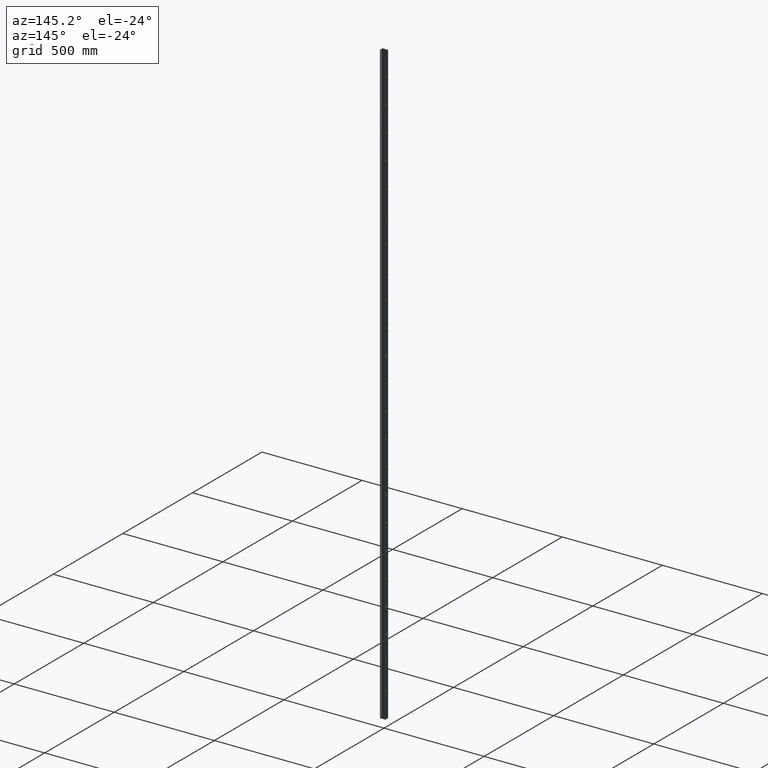
[diagram: clean part render]
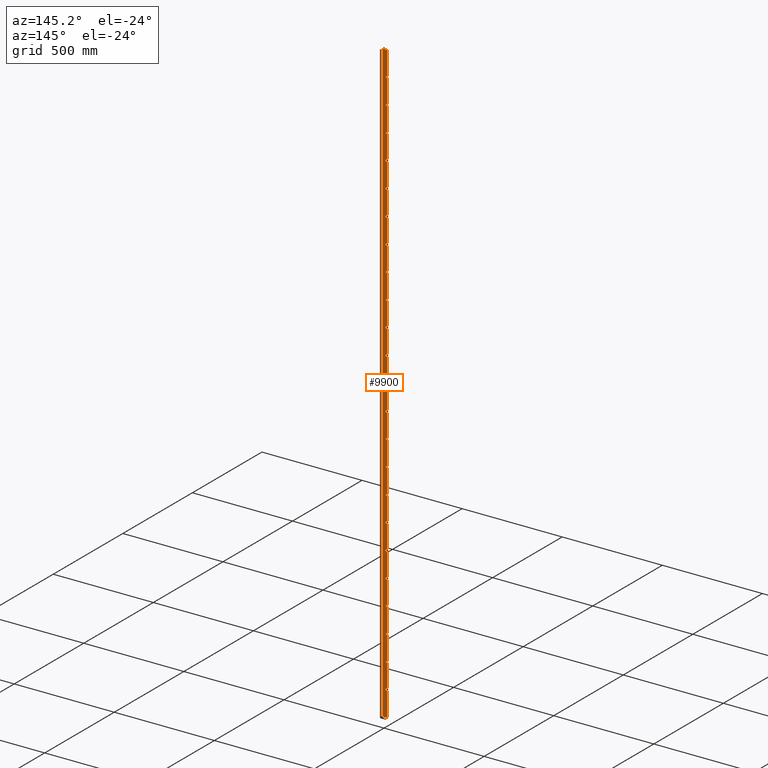
[diagram: same view with one face highlighted and labeled with its STEP entity id]
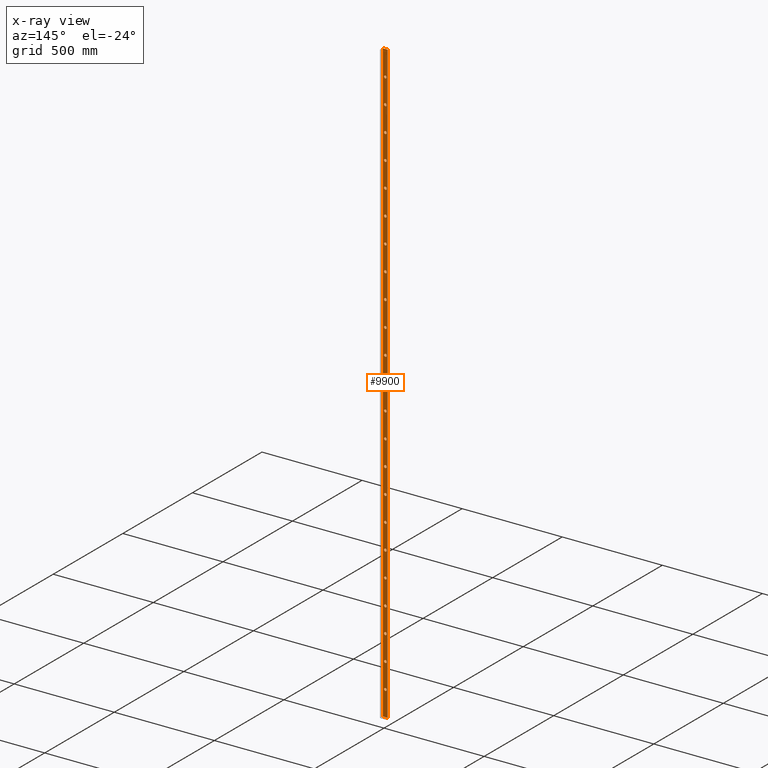
[diagram: x-ray of the same camera — body ghosted, the highlighted face saturated]
A machine part, auxiliary view. The second image highlights one B-rep face of the part: STEP entity #9900.
The next image is the same camera in x-ray: the body ghosted, the highlighted face saturated — about 0% of this face is hidden behind the body in this view.
In plain terms, the highlighted planar face has unit normal (0, -1, 0).
Its self-contained STEP definition (entity closure, byte-faithful):
#43 = CARTESIAN_POINT ( 'NONE',  ( 1.396592535537253302E-11, 10.00000000000000178, 1125.000000000000000 ) ) ;
#130 = DIRECTION ( 'NONE',  ( 0.000000000000000000, 1.000000000000000000, 0.000000000000000000 ) ) ;
#149 = FACE_BOUND ( 'NONE', #1751, .T. ) ;
#173 = CIRCLE ( 'NONE', #6760, 6.499999999999728217 ) ;
#218 = AXIS2_PLACEMENT_3D ( 'NONE', #11113, #4885, #5764 ) ;
#244 = DIRECTION ( 'NONE',  ( 0.000000000000000000, 0.000000000000000000, 1.000000000000000000 ) ) ;
#352 = ORIENTED_EDGE ( 'NONE', *, *, #9024, .F. ) ;
#357 = CIRCLE ( 'NONE', #12306, 6.499999999999728217 ) ;
#366 = EDGE_CURVE ( 'NONE', #8845, #8845, #4467, .T. ) ;
#421 = ORIENTED_EDGE ( 'NONE', *, *, #6223, .F. ) ;
#512 = VERTEX_POINT ( 'NONE', #4103 ) ;
#585 = EDGE_CURVE ( 'NONE', #10962, #10962, #6439, .T. ) ;
#593 = EDGE_LOOP ( 'NONE', ( #8698 ) ) ;
#637 = DIRECTION ( 'NONE',  ( 0.000000000000000000, 1.000000000000000000, 0.000000000000000000 ) ) ;
#788 = EDGE_CURVE ( 'NONE', #8998, #8998, #8182, .T. ) ;
#813 = DIRECTION ( 'NONE',  ( 0.000000000000000000, 0.000000000000000000, 1.000000000000000000 ) ) ;
#815 = FACE_BOUND ( 'NONE', #9198, .T. ) ;
#868 = DIRECTION ( 'NONE',  ( 0.000000000000000000, 0.000000000000000000, 1.000000000000000000 ) ) ;
#873 = VERTEX_POINT ( 'NONE', #8243 ) ;
#919 = CARTESIAN_POINT ( 'NONE',  ( -12.00000000000001421, 10.00000000000000000, -1500.000000000000000 ) ) ;
#1014 = ORIENTED_EDGE ( 'NONE', *, *, #7120, .F. ) ;
#1256 = EDGE_LOOP ( 'NONE', ( #3228 ) ) ;
#1257 = EDGE_LOOP ( 'NONE', ( #8384, #12793, #9186, #7901 ) ) ;
#1358 = CIRCLE ( 'NONE', #9786, 6.499999999999728217 ) ;
#1369 = EDGE_LOOP ( 'NONE', ( #8890 ) ) ;
#1415 = EDGE_LOOP ( 'NONE', ( #13113 ) ) ;
#1523 = VERTEX_POINT ( 'NONE', #9138 ) ;
#1673 = CARTESIAN_POINT ( 'NONE',  ( 1.352949018801714222E-11, 10.00000000000000178, 1006.500000000000000 ) ) ;
#1751 = EDGE_LOOP ( 'NONE', ( #9833 ) ) ;
#1776 = CARTESIAN_POINT ( 'NONE',  ( -12.00000000000001421, 10.00000000000000000, 1500.000000000000000 ) ) ;
#1783 = FACE_OUTER_BOUND ( 'NONE', #1257, .T. ) ;
#1797 = DIRECTION ( 'NONE',  ( 0.000000000000000000, 1.000000000000000000, 0.000000000000000000 ) ) ;
#1842 = DIRECTION ( 'NONE',  ( 0.000000000000000000, -1.000000000000000000, 0.000000000000000000 ) ) ;
#1865 = CARTESIAN_POINT ( 'NONE',  ( 7.419397845041658115E-12, 10.00000000000000178, -743.5000000000000000 ) ) ;
#1895 = EDGE_CURVE ( 'NONE', #7227, #7227, #7685, .T. ) ;
#1942 = DIRECTION ( 'NONE',  ( 0.000000000000000000, 0.000000000000000000, 1.000000000000000000 ) ) ;
#1995 = CARTESIAN_POINT ( 'NONE',  ( 9.601573681818616954E-12, 10.00000000000000178, -118.5000000000000568 ) ) ;
#2034 = EDGE_LOOP ( 'NONE', ( #2665 ) ) ;
#2121 = DIRECTION ( 'NONE',  ( 0.000000000000000000, 0.000000000000000000, 1.000000000000000000 ) ) ;
#2147 = EDGE_CURVE ( 'NONE', #9684, #6347, #10635, .T. ) ;
#2237 = DIRECTION ( 'NONE',  ( -0.000000000000000000, -0.000000000000000000, -1.000000000000000000 ) ) ;
#2344 = DIRECTION ( 'NONE',  ( 0.000000000000000000, 1.000000000000000000, 0.000000000000000000 ) ) ;
#2352 = VERTEX_POINT ( 'NONE', #3063 ) ;
#2450 = FACE_BOUND ( 'NONE', #1369, .T. ) ;
#2459 = AXIS2_PLACEMENT_3D ( 'NONE', #10069, #11092, #9006 ) ;
#2460 = FACE_BOUND ( 'NONE', #7113, .T. ) ;
#2606 = FACE_BOUND ( 'NONE', #3235, .T. ) ;
#2616 = EDGE_CURVE ( 'NONE', #4770, #4770, #3635, .T. ) ;
#2665 = ORIENTED_EDGE ( 'NONE', *, *, #788, .F. ) ;
#2803 = DIRECTION ( 'NONE',  ( 0.000000000000000000, 0.000000000000000000, 1.000000000000000000 ) ) ;
#2833 = ORIENTED_EDGE ( 'NONE', *, *, #8771, .F. ) ;
#2873 = CARTESIAN_POINT ( 'NONE',  ( 7.855833012397050529E-12, 10.00000000000000178, -618.5000000000000000 ) ) ;
#2881 = DIRECTION ( 'NONE',  ( -0.000000000000000000, -0.000000000000000000, -1.000000000000000000 ) ) ;
#2896 = CARTESIAN_POINT ( 'NONE',  ( 7.419397845041658115E-12, 10.00000000000000178, -750.0000000000000000 ) ) ;
#2905 = ORIENTED_EDGE ( 'NONE', *, *, #13005, .F. ) ;
#3016 = ORIENTED_EDGE ( 'NONE', *, *, #585, .F. ) ;
#3040 = ORIENTED_EDGE ( 'NONE', *, *, #2616, .F. ) ;
#3063 = CARTESIAN_POINT ( 'NONE',  ( 1.003800884917400775E-11, 10.00000000000000178, 6.499999999999968914 ) ) ;
#3083 = EDGE_CURVE ( 'NONE', #512, #512, #11093, .T. ) ;
#3120 = CIRCLE ( 'NONE', #4779, 6.499999999999950262 ) ;
#3192 = CARTESIAN_POINT ( 'NONE',  ( 11.99999999999998934, 10.00000000000000178, -1500.000000000000000 ) ) ;
#3228 = ORIENTED_EDGE ( 'NONE', *, *, #4178, .F. ) ;
#3235 = EDGE_LOOP ( 'NONE', ( #3016 ) ) ;
#3242 = DIRECTION ( 'NONE',  ( 0.000000000000000000, 1.000000000000000000, 0.000000000000000000 ) ) ;
#3282 = EDGE_CURVE ( 'NONE', #9984, #9984, #12266, .T. ) ;
#3294 = AXIS2_PLACEMENT_3D ( 'NONE', #43, #3242, #12605 ) ;
#3295 = FACE_BOUND ( 'NONE', #11701, .T. ) ;
#3342 = ORIENTED_EDGE ( 'NONE', *, *, #3083, .F. ) ;
#3395 = CARTESIAN_POINT ( 'NONE',  ( 11.99999999999998934, 10.00000000000000178, 1500.000000000000000 ) ) ;
#3490 = VERTEX_POINT ( 'NONE', #2873 ) ;
#3549 = EDGE_LOOP ( 'NONE', ( #2833 ) ) ;
#3635 = CIRCLE ( 'NONE', #218, 6.499999999999950262 ) ;
#3654 = VERTEX_POINT ( 'NONE', #1865 ) ;
#3683 = CIRCLE ( 'NONE', #6143, 6.499999999999728217 ) ;
#3723 = CARTESIAN_POINT ( 'NONE',  ( 8.728703347107833742E-12, 10.00000000000000178, -375.0000000000000000 ) ) ;
#3753 = DIRECTION ( 'NONE',  ( 0.000000000000000000, 1.000000000000000000, 0.000000000000000000 ) ) ;
#3798 = VERTEX_POINT ( 'NONE', #9187 ) ;
#3873 = EDGE_CURVE ( 'NONE', #6894, #6894, #173, .T. ) ;
#3937 = LINE ( 'NONE', #3395, #11919 ) ;
#3960 = AXIS2_PLACEMENT_3D ( 'NONE', #3723, #3753, #7894 ) ;
#3970 = CARTESIAN_POINT ( 'NONE',  ( 1.091087918388479097E-11, 10.00000000000000178, 256.5000000000000000 ) ) ;
#4022 = CARTESIAN_POINT ( 'NONE',  ( 5.673657175620091690E-12, 10.00000000000000178, -1243.500000000000227 ) ) ;
#4103 = CARTESIAN_POINT ( 'NONE',  ( 6.546527510330874902E-12, 10.00000000000000178, -993.5000000000001137 ) ) ;
#4153 = CARTESIAN_POINT ( 'NONE',  ( -12.00000000000001421, 10.00000000000000178, 1500.000000000000000 ) ) ;
#4178 = EDGE_CURVE ( 'NONE', #6744, #6744, #9289, .T. ) ;
#4254 = CARTESIAN_POINT ( 'NONE',  ( 7.855833012397050529E-12, 10.00000000000000178, -625.0000000000000000 ) ) ;
#4306 = AXIS2_PLACEMENT_3D ( 'NONE', #10255, #9330, #868 ) ;
#4467 = CIRCLE ( 'NONE', #6364, 6.500000000000005329 ) ;
#4728 = EDGE_CURVE ( 'NONE', #9684, #5459, #3937, .T. ) ;
#4770 = VERTEX_POINT ( 'NONE', #12355 ) ;
#4773 = DIRECTION ( 'NONE',  ( 0.000000000000000000, 1.000000000000000000, 0.000000000000000000 ) ) ;
#4779 = AXIS2_PLACEMENT_3D ( 'NONE', #7640, #9681, #10817 ) ;
#4802 = CIRCLE ( 'NONE', #8719, 6.499999999999950262 ) ;
#4885 = DIRECTION ( 'NONE',  ( 0.000000000000000000, 1.000000000000000000, 0.000000000000000000 ) ) ;
#4888 = EDGE_CURVE ( 'NONE', #10657, #10657, #3120, .T. ) ;
#5037 = DIRECTION ( 'NONE',  ( 0.000000000000000000, 0.000000000000000000, 1.000000000000000000 ) ) ;
#5092 = DIRECTION ( 'NONE',  ( 0.000000000000000000, 0.000000000000000000, 1.000000000000000000 ) ) ;
#5099 = CARTESIAN_POINT ( 'NONE',  ( 1.440236052272792382E-11, 10.00000000000000178, 1256.499999999999773 ) ) ;
#5102 = DIRECTION ( 'NONE',  ( 0.000000000000000000, 1.000000000000000000, 0.000000000000000000 ) ) ;
#5114 = VERTEX_POINT ( 'NONE', #3970 ) ;
#5218 = EDGE_CURVE ( 'NONE', #13429, #13429, #4802, .T. ) ;
#5219 = ORIENTED_EDGE ( 'NONE', *, *, #3873, .F. ) ;
#5263 = ORIENTED_EDGE ( 'NONE', *, *, #13224, .F. ) ;
#5459 = VERTEX_POINT ( 'NONE', #3192 ) ;
#5542 = ORIENTED_EDGE ( 'NONE', *, *, #1895, .F. ) ;
#5618 = CIRCLE ( 'NONE', #3960, 6.500000000000005329 ) ;
#5620 = CARTESIAN_POINT ( 'NONE',  ( 5.237222008264700891E-12, 10.00000000000000178, -1375.000000000000000 ) ) ;
#5644 = CARTESIAN_POINT ( 'NONE',  ( 1.134731435124018338E-11, 10.00000000000000178, 375.0000000000000000 ) ) ;
#5647 = CARTESIAN_POINT ( 'NONE',  ( -12.00000000000001421, 10.00000000000000000, 1500.000000000000000 ) ) ;
#5764 = DIRECTION ( 'NONE',  ( 0.000000000000000000, 0.000000000000000000, 1.000000000000000000 ) ) ;
#5794 = CARTESIAN_POINT ( 'NONE',  ( 5.673657175620091690E-12, 10.00000000000000178, -1250.000000000000000 ) ) ;
#5859 = DIRECTION ( 'NONE',  ( 0.000000000000000000, 0.000000000000000000, 1.000000000000000000 ) ) ;
#5877 = FACE_BOUND ( 'NONE', #9007, .T. ) ;
#5889 = CIRCLE ( 'NONE', #9525, 6.499999999999968914 ) ;
#5897 = EDGE_CURVE ( 'NONE', #5459, #12338, #10812, .T. ) ;
#5918 = VERTEX_POINT ( 'NONE', #13252 ) ;
#6044 = FACE_BOUND ( 'NONE', #1415, .T. ) ;
#6081 = VECTOR ( 'NONE', #11486, 1000.000000000000000 ) ;
#6143 = AXIS2_PLACEMENT_3D ( 'NONE', #12556, #130, #7343 ) ;
#6198 = CARTESIAN_POINT ( 'NONE',  ( 9.165138514463224540E-12, 10.00000000000000178, -250.0000000000000000 ) ) ;
#6217 = DIRECTION ( 'NONE',  ( 0.000000000000000000, 1.000000000000000000, 0.000000000000000000 ) ) ;
#6223 = EDGE_CURVE ( 'NONE', #9334, #9334, #357, .T. ) ;
#6347 = VERTEX_POINT ( 'NONE', #5647 ) ;
#6350 = CARTESIAN_POINT ( 'NONE',  ( 11.99999999999998934, 10.00000000000000178, 1500.000000000000000 ) ) ;
#6364 = AXIS2_PLACEMENT_3D ( 'NONE', #11284, #5102, #813 ) ;
#6386 = FACE_BOUND ( 'NONE', #593, .T. ) ;
#6439 = CIRCLE ( 'NONE', #8515, 6.499999999999950262 ) ;
#6502 = EDGE_LOOP ( 'NONE', ( #5219 ) ) ;
#6505 = AXIS2_PLACEMENT_3D ( 'NONE', #6955, #1842, #9123 ) ;
#6600 = LINE ( 'NONE', #1776, #13449 ) ;
#6608 = EDGE_LOOP ( 'NONE', ( #3342 ) ) ;
#6629 = DIRECTION ( 'NONE',  ( 0.000000000000000000, 1.000000000000000000, 0.000000000000000000 ) ) ;
#6744 = VERTEX_POINT ( 'NONE', #9272 ) ;
#6760 = AXIS2_PLACEMENT_3D ( 'NONE', #5794, #4773, #10890 ) ;
#6894 = VERTEX_POINT ( 'NONE', #4022 ) ;
#6955 = CARTESIAN_POINT ( 'NONE',  ( -12.00000000000001421, 10.00000000000000178, 1500.000000000000000 ) ) ;
#7013 = FACE_BOUND ( 'NONE', #11286, .T. ) ;
#7113 = EDGE_LOOP ( 'NONE', ( #1014 ) ) ;
#7120 = EDGE_CURVE ( 'NONE', #3490, #3490, #13077, .T. ) ;
#7188 = CARTESIAN_POINT ( 'NONE',  ( 1.309305502066174980E-11, 10.00000000000000178, 881.5000000000000000 ) ) ;
#7227 = VERTEX_POINT ( 'NONE', #11281 ) ;
#7259 = DIRECTION ( 'NONE',  ( 0.000000000000000000, 0.000000000000000000, 1.000000000000000000 ) ) ;
#7343 = DIRECTION ( 'NONE',  ( 0.000000000000000000, 0.000000000000000000, 1.000000000000000000 ) ) ;
#7346 = DIRECTION ( 'NONE',  ( 0.000000000000000000, 0.000000000000000000, 1.000000000000000000 ) ) ;
#7448 = ORIENTED_EDGE ( 'NONE', *, *, #13478, .F. ) ;
#7524 = CIRCLE ( 'NONE', #8578, 6.499999999999950262 ) ;
#7559 = VERTEX_POINT ( 'NONE', #9100 ) ;
#7579 = CARTESIAN_POINT ( 'NONE',  ( 1.265661985330635901E-11, 10.00000000000000178, 750.0000000000000000 ) ) ;
#7604 = CARTESIAN_POINT ( 'NONE',  ( 1.440236052272792382E-11, 10.00000000000000178, 1250.000000000000000 ) ) ;
#7640 = CARTESIAN_POINT ( 'NONE',  ( 9.601573681818616954E-12, 10.00000000000000178, -125.0000000000000000 ) ) ;
#7674 = AXIS2_PLACEMENT_3D ( 'NONE', #12416, #1797, #5037 ) ;
#7676 = CIRCLE ( 'NONE', #8196, 6.500000000000005329 ) ;
#7685 = CIRCLE ( 'NONE', #11212, 6.500000000000005329 ) ;
#7688 = DIRECTION ( 'NONE',  ( 0.000000000000000000, 1.000000000000000000, 0.000000000000000000 ) ) ;
#7770 = EDGE_LOOP ( 'NONE', ( #7915 ) ) ;
#7808 = EDGE_LOOP ( 'NONE', ( #10676 ) ) ;
#7894 = DIRECTION ( 'NONE',  ( 0.000000000000000000, 0.000000000000000000, 1.000000000000000000 ) ) ;
#7901 = ORIENTED_EDGE ( 'NONE', *, *, #4728, .T. ) ;
#7915 = ORIENTED_EDGE ( 'NONE', *, *, #3282, .F. ) ;
#7985 = PLANE ( 'NONE',  #6505 ) ;
#8054 = CARTESIAN_POINT ( 'NONE',  ( 1.178374951859557579E-11, 10.00000000000000178, 506.4999999999999432 ) ) ;
#8182 = CIRCLE ( 'NONE', #10614, 6.499999999999977796 ) ;
#8196 = AXIS2_PLACEMENT_3D ( 'NONE', #13555, #6217, #7346 ) ;
#8227 = EDGE_LOOP ( 'NONE', ( #352 ) ) ;
#8235 = CIRCLE ( 'NONE', #7674, 6.499999999999728217 ) ;
#8243 = CARTESIAN_POINT ( 'NONE',  ( 1.265661985330635901E-11, 10.00000000000000178, 756.5000000000000000 ) ) ;
#8294 = EDGE_CURVE ( 'NONE', #5114, #5114, #7676, .T. ) ;
#8308 = FACE_BOUND ( 'NONE', #6608, .T. ) ;
#8320 = FACE_BOUND ( 'NONE', #11182, .T. ) ;
#8373 = VECTOR ( 'NONE', #10062, 1000.000000000000000 ) ;
#8384 = ORIENTED_EDGE ( 'NONE', *, *, #5897, .T. ) ;
#8420 = ORIENTED_EDGE ( 'NONE', *, *, #5218, .F. ) ;
#8515 = AXIS2_PLACEMENT_3D ( 'NONE', #9823, #7688, #10918 ) ;
#8578 = AXIS2_PLACEMENT_3D ( 'NONE', #2896, #10166, #11208 ) ;
#8686 = VERTEX_POINT ( 'NONE', #7188 ) ;
#8698 = ORIENTED_EDGE ( 'NONE', *, *, #11187, .F. ) ;
#8719 = AXIS2_PLACEMENT_3D ( 'NONE', #10372, #9355, #1942 ) ;
#8731 = EDGE_LOOP ( 'NONE', ( #2905 ) ) ;
#8771 = EDGE_CURVE ( 'NONE', #2352, #2352, #5889, .T. ) ;
#8845 = VERTEX_POINT ( 'NONE', #10016 ) ;
#8890 = ORIENTED_EDGE ( 'NONE', *, *, #10493, .F. ) ;
#8908 = EDGE_LOOP ( 'NONE', ( #7448 ) ) ;
#8941 = CARTESIAN_POINT ( 'NONE',  ( 6.982962677686266509E-12, 10.00000000000000178, -875.0000000000000000 ) ) ;
#8943 = CARTESIAN_POINT ( 'NONE',  ( 6.546527510330874902E-12, 10.00000000000000178, -1000.000000000000000 ) ) ;
#8996 = CARTESIAN_POINT ( 'NONE',  ( -12.00000000000001421, 10.00000000000000178, -1500.000000000000000 ) ) ;
#8998 = VERTEX_POINT ( 'NONE', #8999 ) ;
#8999 = CARTESIAN_POINT ( 'NONE',  ( 9.165138514463224540E-12, 10.00000000000000178, -243.5000000000000284 ) ) ;
#9006 = DIRECTION ( 'NONE',  ( 0.000000000000000000, 0.000000000000000000, 1.000000000000000000 ) ) ;
#9007 = EDGE_LOOP ( 'NONE', ( #10480 ) ) ;
#9024 = EDGE_CURVE ( 'NONE', #3654, #3654, #7524, .T. ) ;
#9100 = CARTESIAN_POINT ( 'NONE',  ( 8.728703347107833742E-12, 10.00000000000000178, -368.5000000000000000 ) ) ;
#9123 = DIRECTION ( 'NONE',  ( 0.000000000000000000, -0.000000000000000000, -1.000000000000000000 ) ) ;
#9138 = CARTESIAN_POINT ( 'NONE',  ( 1.222018468595096659E-11, 10.00000000000000178, 631.5000000000000000 ) ) ;
#9186 = ORIENTED_EDGE ( 'NONE', *, *, #2147, .F. ) ;
#9187 = CARTESIAN_POINT ( 'NONE',  ( 5.237222008264700891E-12, 10.00000000000000178, -1368.500000000000227 ) ) ;
#9198 = EDGE_LOOP ( 'NONE', ( #5542 ) ) ;
#9232 = EDGE_LOOP ( 'NONE', ( #8420 ) ) ;
#9272 = CARTESIAN_POINT ( 'NONE',  ( 6.982962677686266509E-12, 10.00000000000000178, -868.5000000000000000 ) ) ;
#9289 = CIRCLE ( 'NONE', #12176, 6.499999999999950262 ) ;
#9330 = DIRECTION ( 'NONE',  ( 0.000000000000000000, 1.000000000000000000, 0.000000000000000000 ) ) ;
#9334 = VERTEX_POINT ( 'NONE', #5099 ) ;
#9355 = DIRECTION ( 'NONE',  ( 0.000000000000000000, 1.000000000000000000, 0.000000000000000000 ) ) ;
#9477 = DIRECTION ( 'NONE',  ( 0.000000000000000000, 1.000000000000000000, 0.000000000000000000 ) ) ;
#9504 = DIRECTION ( 'NONE',  ( 0.000000000000000000, 1.000000000000000000, 0.000000000000000000 ) ) ;
#9525 = AXIS2_PLACEMENT_3D ( 'NONE', #10562, #12608, #2121 ) ;
#9541 = EDGE_LOOP ( 'NONE', ( #3040 ) ) ;
#9545 = CIRCLE ( 'NONE', #2459, 6.499999999999950262 ) ;
#9547 = ORIENTED_EDGE ( 'NONE', *, *, #12278, .F. ) ;
#9562 = AXIS2_PLACEMENT_3D ( 'NONE', #8943, #11124, #2803 ) ;
#9681 = DIRECTION ( 'NONE',  ( 0.000000000000000000, 1.000000000000000000, 0.000000000000000000 ) ) ;
#9684 = VERTEX_POINT ( 'NONE', #6350 ) ;
#9786 = AXIS2_PLACEMENT_3D ( 'NONE', #5620, #6629, #10840 ) ;
#9823 = CARTESIAN_POINT ( 'NONE',  ( 1.352949018801714222E-11, 10.00000000000000178, 1000.000000000000000 ) ) ;
#9833 = ORIENTED_EDGE ( 'NONE', *, *, #4888, .F. ) ;
#9900 = ADVANCED_FACE ( 'NONE', ( #5877, #7013, #11909, #2606, #6386, #8320, #3295, #11240, #815, #6044, #13370, #12729, #149, #9928, #13038, #11073, #2460, #10449, #12561, #8308, #2450, #12874, #13202, #1783 ), #7985, .F. ) ;
#9928 = FACE_BOUND ( 'NONE', #2034, .T. ) ;
#9984 = VERTEX_POINT ( 'NONE', #13446 ) ;
#10016 = CARTESIAN_POINT ( 'NONE',  ( 8.292268179752441328E-12, 10.00000000000000178, -493.5000000000000000 ) ) ;
#10062 = DIRECTION ( 'NONE',  ( -1.000000000000000000, -0.000000000000000000, -0.000000000000000000 ) ) ;
#10069 = CARTESIAN_POINT ( 'NONE',  ( 1.309305502066174980E-11, 10.00000000000000178, 875.0000000000000000 ) ) ;
#10157 = CIRCLE ( 'NONE', #13562, 6.499999999999950262 ) ;
#10166 = DIRECTION ( 'NONE',  ( 0.000000000000000000, 1.000000000000000000, 0.000000000000000000 ) ) ;
#10255 = CARTESIAN_POINT ( 'NONE',  ( 1.222018468595096659E-11, 10.00000000000000178, 625.0000000000000000 ) ) ;
#10372 = CARTESIAN_POINT ( 'NONE',  ( 1.178374951859557579E-11, 10.00000000000000178, 500.0000000000000000 ) ) ;
#10449 = FACE_BOUND ( 'NONE', #8227, .T. ) ;
#10480 = ORIENTED_EDGE ( 'NONE', *, *, #10995, .F. ) ;
#10493 = EDGE_CURVE ( 'NONE', #5918, #5918, #8235, .T. ) ;
#10562 = CARTESIAN_POINT ( 'NONE',  ( 1.003800884917400775E-11, 10.00000000000000178, 0.000000000000000000 ) ) ;
#10614 = AXIS2_PLACEMENT_3D ( 'NONE', #6198, #13384, #5092 ) ;
#10635 = LINE ( 'NONE', #4153, #6081 ) ;
#10657 = VERTEX_POINT ( 'NONE', #1995 ) ;
#10676 = ORIENTED_EDGE ( 'NONE', *, *, #366, .F. ) ;
#10722 = DIRECTION ( 'NONE',  ( 0.000000000000000000, 0.000000000000000000, 1.000000000000000000 ) ) ;
#10812 = LINE ( 'NONE', #8996, #8373 ) ;
#10817 = DIRECTION ( 'NONE',  ( 0.000000000000000000, 0.000000000000000000, 1.000000000000000000 ) ) ;
#10840 = DIRECTION ( 'NONE',  ( 0.000000000000000000, 0.000000000000000000, 1.000000000000000000 ) ) ;
#10890 = DIRECTION ( 'NONE',  ( 0.000000000000000000, 0.000000000000000000, 1.000000000000000000 ) ) ;
#10918 = DIRECTION ( 'NONE',  ( 0.000000000000000000, 0.000000000000000000, 1.000000000000000000 ) ) ;
#10962 = VERTEX_POINT ( 'NONE', #1673 ) ;
#10995 = EDGE_CURVE ( 'NONE', #12773, #12773, #3683, .T. ) ;
#11073 = FACE_BOUND ( 'NONE', #7808, .T. ) ;
#11092 = DIRECTION ( 'NONE',  ( 0.000000000000000000, 1.000000000000000000, 0.000000000000000000 ) ) ;
#11093 = CIRCLE ( 'NONE', #9562, 6.499999999999839240 ) ;
#11113 = CARTESIAN_POINT ( 'NONE',  ( 1.047444401652940017E-11, 10.00000000000000178, 125.0000000000000000 ) ) ;
#11124 = DIRECTION ( 'NONE',  ( 0.000000000000000000, 1.000000000000000000, 0.000000000000000000 ) ) ;
#11143 = CIRCLE ( 'NONE', #4306, 6.499999999999950262 ) ;
#11182 = EDGE_LOOP ( 'NONE', ( #5263 ) ) ;
#11187 = EDGE_CURVE ( 'NONE', #8686, #8686, #9545, .T. ) ;
#11208 = DIRECTION ( 'NONE',  ( 0.000000000000000000, 0.000000000000000000, 1.000000000000000000 ) ) ;
#11212 = AXIS2_PLACEMENT_3D ( 'NONE', #5644, #12839, #12910 ) ;
#11240 = FACE_BOUND ( 'NONE', #9232, .T. ) ;
#11281 = CARTESIAN_POINT ( 'NONE',  ( 1.134731435124018338E-11, 10.00000000000000178, 381.5000000000000000 ) ) ;
#11284 = CARTESIAN_POINT ( 'NONE',  ( 8.292268179752441328E-12, 10.00000000000000178, -500.0000000000000000 ) ) ;
#11286 = EDGE_LOOP ( 'NONE', ( #421 ) ) ;
#11386 = CARTESIAN_POINT ( 'NONE',  ( 1.483879569008331623E-11, 10.00000000000000178, 1381.499999999999773 ) ) ;
#11486 = DIRECTION ( 'NONE',  ( -1.000000000000000000, -0.000000000000000000, -0.000000000000000000 ) ) ;
#11701 = EDGE_LOOP ( 'NONE', ( #9547 ) ) ;
#11909 = FACE_BOUND ( 'NONE', #7770, .T. ) ;
#11919 = VECTOR ( 'NONE', #2237, 1000.000000000000000 ) ;
#11952 = AXIS2_PLACEMENT_3D ( 'NONE', #4254, #9477, #7259 ) ;
#12176 = AXIS2_PLACEMENT_3D ( 'NONE', #8941, #637, #5859 ) ;
#12266 = CIRCLE ( 'NONE', #3294, 6.499999999999728217 ) ;
#12278 = EDGE_CURVE ( 'NONE', #1523, #1523, #11143, .T. ) ;
#12306 = AXIS2_PLACEMENT_3D ( 'NONE', #7604, #9504, #244 ) ;
#12338 = VERTEX_POINT ( 'NONE', #919 ) ;
#12355 = CARTESIAN_POINT ( 'NONE',  ( 1.047444401652940017E-11, 10.00000000000000178, 131.4999999999999432 ) ) ;
#12416 = CARTESIAN_POINT ( 'NONE',  ( 6.110092342975483296E-12, 10.00000000000000178, -1125.000000000000000 ) ) ;
#12556 = CARTESIAN_POINT ( 'NONE',  ( 1.483879569008331623E-11, 10.00000000000000178, 1375.000000000000000 ) ) ;
#12561 = FACE_BOUND ( 'NONE', #1256, .T. ) ;
#12605 = DIRECTION ( 'NONE',  ( 0.000000000000000000, 0.000000000000000000, 1.000000000000000000 ) ) ;
#12608 = DIRECTION ( 'NONE',  ( 0.000000000000000000, 1.000000000000000000, 0.000000000000000000 ) ) ;
#12729 = FACE_BOUND ( 'NONE', #3549, .T. ) ;
#12773 = VERTEX_POINT ( 'NONE', #11386 ) ;
#12793 = ORIENTED_EDGE ( 'NONE', *, *, #13185, .F. ) ;
#12839 = DIRECTION ( 'NONE',  ( 0.000000000000000000, 1.000000000000000000, 0.000000000000000000 ) ) ;
#12874 = FACE_BOUND ( 'NONE', #6502, .T. ) ;
#12910 = DIRECTION ( 'NONE',  ( 0.000000000000000000, 0.000000000000000000, 1.000000000000000000 ) ) ;
#13005 = EDGE_CURVE ( 'NONE', #7559, #7559, #5618, .T. ) ;
#13038 = FACE_BOUND ( 'NONE', #8731, .T. ) ;
#13077 = CIRCLE ( 'NONE', #11952, 6.499999999999950262 ) ;
#13113 = ORIENTED_EDGE ( 'NONE', *, *, #8294, .F. ) ;
#13185 = EDGE_CURVE ( 'NONE', #6347, #12338, #6600, .T. ) ;
#13202 = FACE_BOUND ( 'NONE', #8908, .T. ) ;
#13224 = EDGE_CURVE ( 'NONE', #873, #873, #10157, .T. ) ;
#13252 = CARTESIAN_POINT ( 'NONE',  ( 6.110092342975483296E-12, 10.00000000000000178, -1118.500000000000227 ) ) ;
#13370 = FACE_BOUND ( 'NONE', #9541, .T. ) ;
#13384 = DIRECTION ( 'NONE',  ( 0.000000000000000000, 1.000000000000000000, 0.000000000000000000 ) ) ;
#13429 = VERTEX_POINT ( 'NONE', #8054 ) ;
#13446 = CARTESIAN_POINT ( 'NONE',  ( 1.396592535537253302E-11, 10.00000000000000178, 1131.499999999999773 ) ) ;
#13449 = VECTOR ( 'NONE', #2881, 1000.000000000000000 ) ;
#13478 = EDGE_CURVE ( 'NONE', #3798, #3798, #1358, .T. ) ;
#13555 = CARTESIAN_POINT ( 'NONE',  ( 1.091087918388479097E-11, 10.00000000000000178, 250.0000000000000000 ) ) ;
#13562 = AXIS2_PLACEMENT_3D ( 'NONE', #7579, #2344, #10722 ) ;